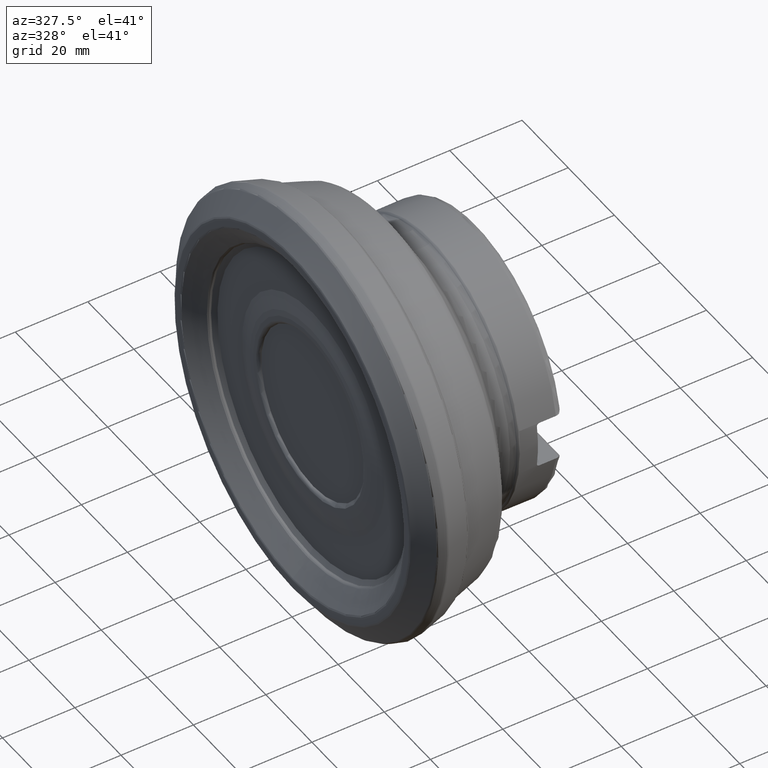
[diagram: clean part render]
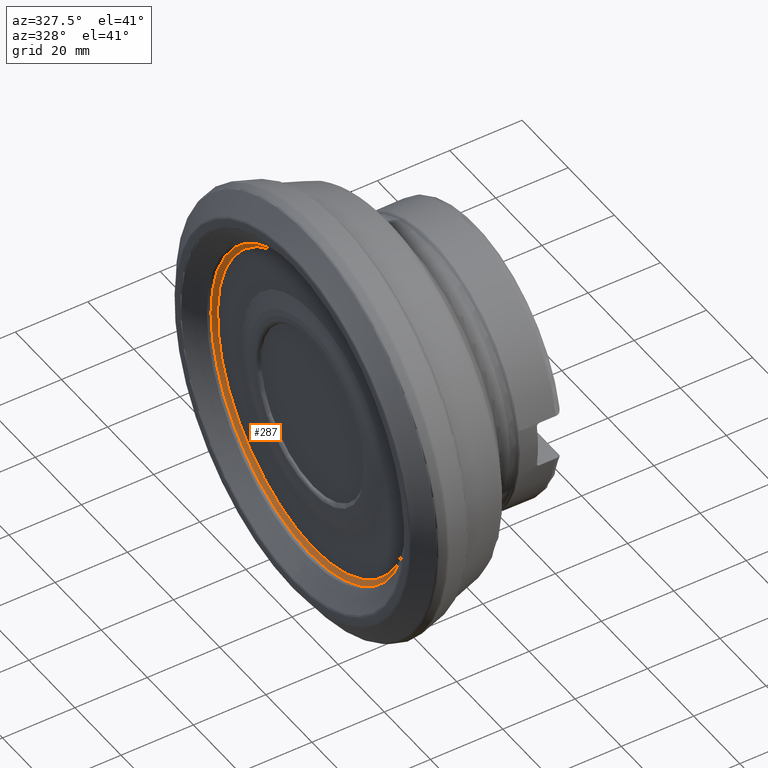
[diagram: same view with one face highlighted and labeled with its STEP entity id]
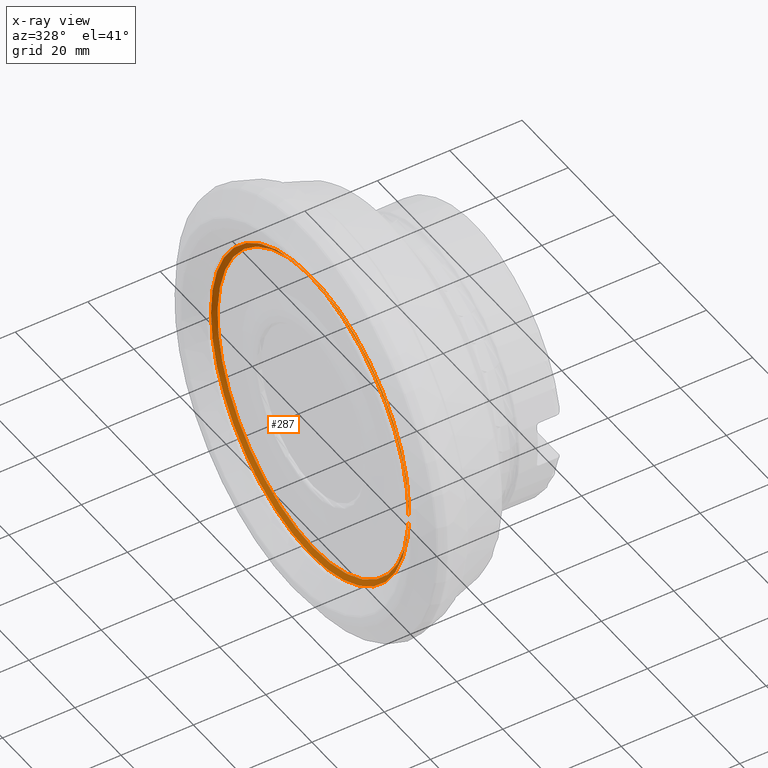
[diagram: x-ray of the same camera — body ghosted, the highlighted face saturated]
A machine part, auxiliary view. The second image highlights one B-rep face of the part: STEP entity #287.
The next image is the same camera in x-ray: the body ghosted, the highlighted face saturated — about 0% of this face is hidden behind the body in this view.
In plain terms, the highlighted conical surface has half-angle 54.097 deg.
Its self-contained STEP definition (entity closure, byte-faithful):
#132=CONICAL_SURFACE('',#1175,47.4081969578784,54.0970749627208);
#287=ADVANCED_FACE('',(#463,#464),#132,.F.);
#463=FACE_BOUND('',#577,.T.);
#464=FACE_BOUND('',#578,.T.);
#577=EDGE_LOOP('',(#801));
#578=EDGE_LOOP('',(#802));
#801=ORIENTED_EDGE('',*,*,#906,.F.);
#802=ORIENTED_EDGE('',*,*,#1011,.T.);
#816=VERTEX_POINT('',#1458);
#899=VERTEX_POINT('',#2026);
#906=EDGE_CURVE('',#816,#816,#1018,.T.);
#1011=EDGE_CURVE('',#899,#899,#1071,.T.);
#1018=CIRCLE('',#1079,42.8584288010804);
#1071=CIRCLE('',#1174,41.5429711717794);
#1079=AXIS2_PLACEMENT_3D('',#1457,#1192,#1193);
#1174=AXIS2_PLACEMENT_3D('',#2025,#1426,#1427);
#1175=AXIS2_PLACEMENT_3D('',#2027,#1428,#1429);
#1192=DIRECTION('',(1.,0.,0.));
#1193=DIRECTION('',(0.,0.,-1.));
#1426=DIRECTION('',(1.,0.,0.));
#1427=DIRECTION('',(0.,0.,-1.));
#1428=DIRECTION('',(-1.,0.,0.));
#1429=DIRECTION('',(1.57845017223437E-17,0.,1.));
#1457=CARTESIAN_POINT('',(4.89977866023098,0.,0.));
#1458=CARTESIAN_POINT('',(4.89977866023098,0.,-42.8584288010804));
#2025=CARTESIAN_POINT('',(5.8521135271825,0.,0.));
#2026=CARTESIAN_POINT('',(5.8521135271825,0.,-41.5429711717794));
#2027=CARTESIAN_POINT('',(1.60594178114646,0.,0.));